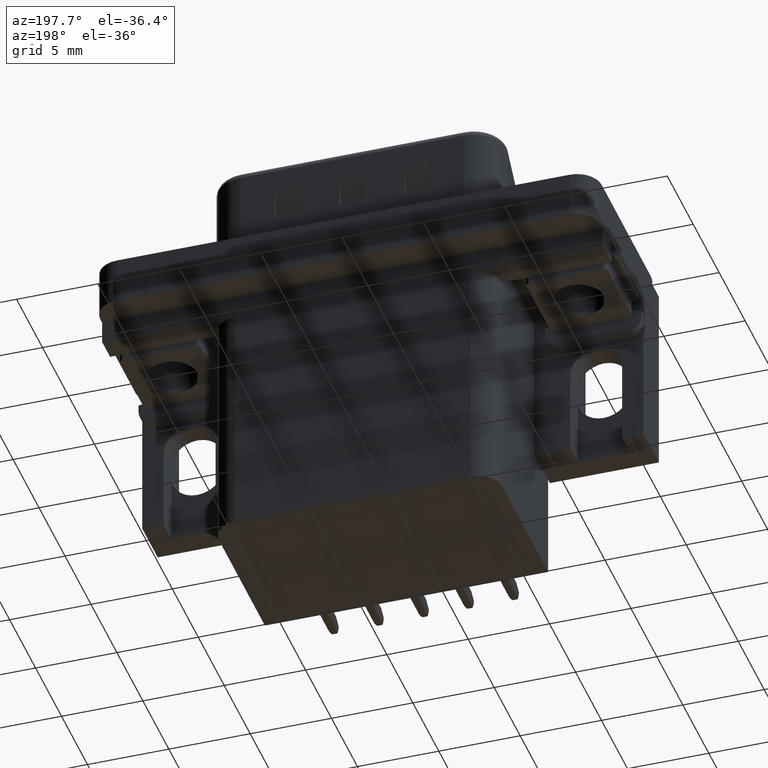
[diagram: clean part render]
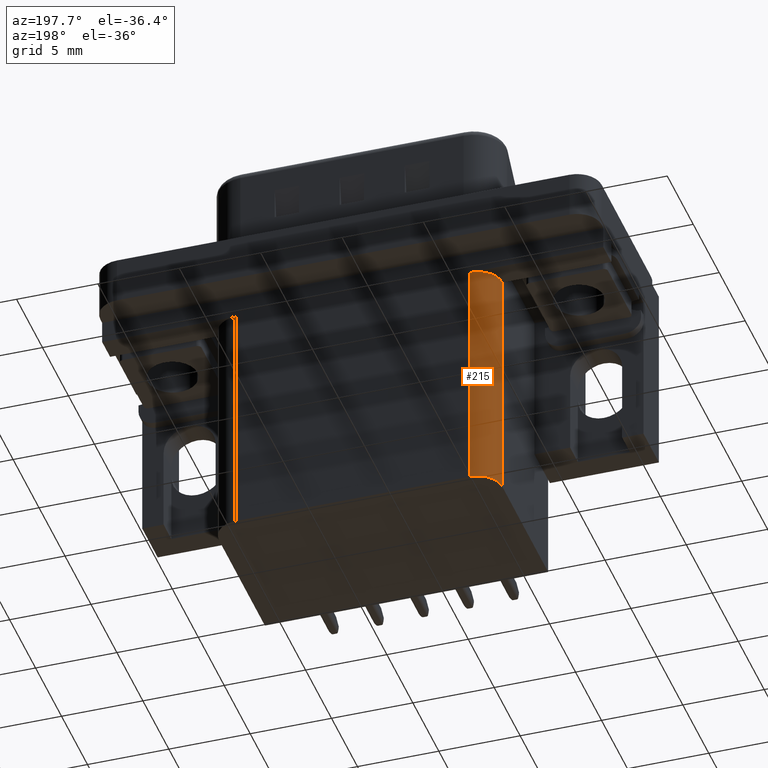
[diagram: same view with one face highlighted and labeled with its STEP entity id]
A machine part, auxiliary view. The second image highlights one B-rep face of the part: STEP entity #215.
In plain terms, the highlighted cylindrical surface (edge-blend (fillet) strip) has radius 1.5 mm, axis along (0, 0, 1).
Its self-contained STEP definition (entity closure, byte-faithful):
#215 = ADVANCED_FACE ( 'NONE', ( #9482 ), #825, .T. ) ;
#251 = DIRECTION ( 'NONE',  ( 1.000000000000000000, 8.673617379884032500E-016, 0.0000000000000000000 ) ) ;
#825 = CYLINDRICAL_SURFACE ( 'NONE', #12954, 1.500000000000000400 ) ;
#1612 = DIRECTION ( 'NONE',  ( -0.0000000000000000000, -0.0000000000000000000, 1.000000000000000000 ) ) ;
#2222 = VECTOR ( 'NONE', #2412, 1000.000000000000000 ) ;
#2412 = DIRECTION ( 'NONE',  ( -0.0000000000000000000, -0.0000000000000000000, 1.000000000000000000 ) ) ;
#2424 = ORIENTED_EDGE ( 'NONE', *, *, #9906, .F. ) ;
#2789 = CARTESIAN_POINT ( 'NONE',  ( 5.289999999999994700, 2.924999999999992300, -18.75999999999999800 ) ) ;
#3632 = CARTESIAN_POINT ( 'NONE',  ( 3.789999999999993400, 2.924999999999992300, -3.900000000000000800 ) ) ;
#3690 = CARTESIAN_POINT ( 'NONE',  ( 3.789999999999993400, 2.924999999999992300, -18.75999999999999800 ) ) ;
#3987 = EDGE_CURVE ( 'NONE', #12478, #13304, #5120, .T. ) ;
#4621 = EDGE_CURVE ( 'NONE', #12478, #7913, #10617, .T. ) ;
#5120 = LINE ( 'NONE', #3690, #2222 ) ;
#5386 = LINE ( 'NONE', #10266, #8252 ) ;
#6807 = DIRECTION ( 'NONE',  ( -0.0000000000000000000, -0.0000000000000000000, -1.000000000000000000 ) ) ;
#7913 = VERTEX_POINT ( 'NONE', #10925 ) ;
#8252 = VECTOR ( 'NONE', #1612, 1000.000000000000000 ) ;
#8673 = ORIENTED_EDGE ( 'NONE', *, *, #4621, .F. ) ;
#8825 = VERTEX_POINT ( 'NONE', #13670 ) ;
#8834 = CIRCLE ( 'NONE', #12019, 1.500000000000000400 ) ;
#9210 = EDGE_CURVE ( 'NONE', #13304, #8825, #8834, .T. ) ;
#9482 = FACE_OUTER_BOUND ( 'NONE', #10305, .T. ) ;
#9487 = ORIENTED_EDGE ( 'NONE', *, *, #9210, .T. ) ;
#9867 = DIRECTION ( 'NONE',  ( 1.000000000000000000, 0.0000000000000000000, 0.0000000000000000000 ) ) ;
#9906 = EDGE_CURVE ( 'NONE', #7913, #8825, #5386, .T. ) ;
#10266 = CARTESIAN_POINT ( 'NONE',  ( 5.289999999999994700, 4.424999999999992700, -18.75999999999999800 ) ) ;
#10305 = EDGE_LOOP ( 'NONE', ( #11262, #9487, #2424, #8673 ) ) ;
#10536 = CARTESIAN_POINT ( 'NONE',  ( 3.789999999999993400, 2.924999999999992300, -18.75999999999999800 ) ) ;
#10617 = CIRCLE ( 'NONE', #13737, 1.500000000000000400 ) ;
#10925 = CARTESIAN_POINT ( 'NONE',  ( 5.289999999999994700, 4.424999999999992700, -18.75999999999999800 ) ) ;
#11262 = ORIENTED_EDGE ( 'NONE', *, *, #3987, .T. ) ;
#11374 = DIRECTION ( 'NONE',  ( -1.000000000000000000, 0.0000000000000000000, 0.0000000000000000000 ) ) ;
#11455 = DIRECTION ( 'NONE',  ( 0.0000000000000000000, 0.0000000000000000000, -1.000000000000000000 ) ) ;
#12019 = AXIS2_PLACEMENT_3D ( 'NONE', #13220, #6807, #251 ) ;
#12478 = VERTEX_POINT ( 'NONE', #10536 ) ;
#12487 = CARTESIAN_POINT ( 'NONE',  ( 5.289999999999994700, 2.924999999999992300, -18.75999999999999800 ) ) ;
#12954 = AXIS2_PLACEMENT_3D ( 'NONE', #2789, #13238, #9867 ) ;
#13220 = CARTESIAN_POINT ( 'NONE',  ( 5.289999999999994700, 2.924999999999992300, -3.900000000000000800 ) ) ;
#13238 = DIRECTION ( 'NONE',  ( -0.0000000000000000000, -0.0000000000000000000, 1.000000000000000000 ) ) ;
#13304 = VERTEX_POINT ( 'NONE', #3632 ) ;
#13670 = CARTESIAN_POINT ( 'NONE',  ( 5.289999999999993800, 4.424999999999991800, -3.899999999999999900 ) ) ;
#13737 = AXIS2_PLACEMENT_3D ( 'NONE', #12487, #11455, #11374 ) ;